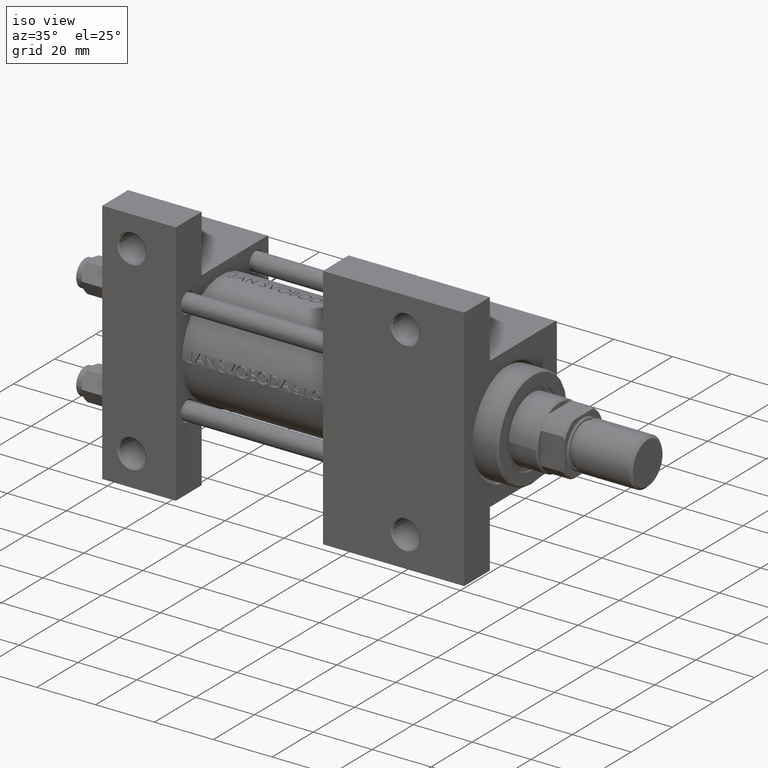
[diagram: clean part render]
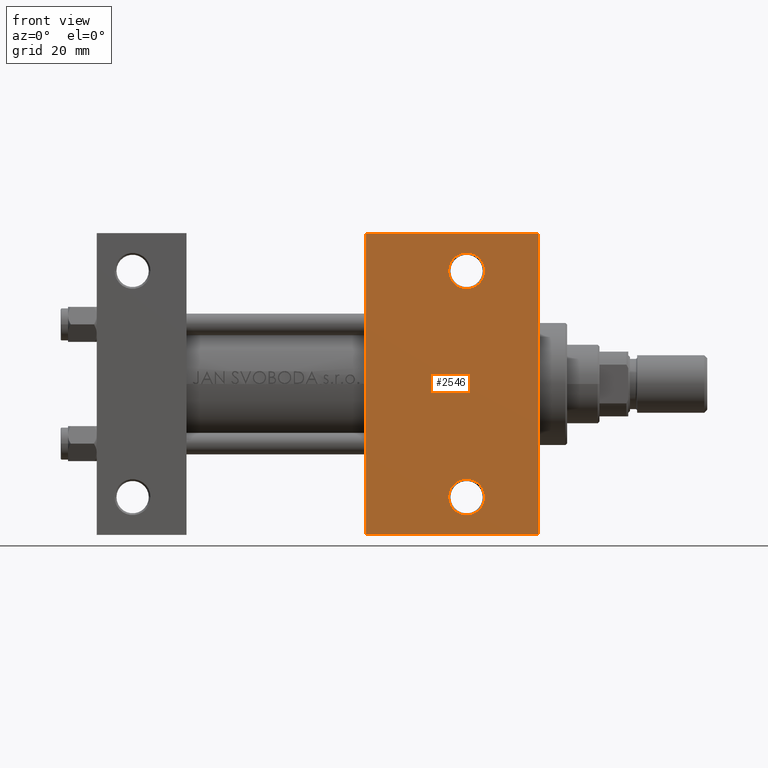
[diagram: tour spotlight — one face highlighted and labeled with its STEP entity id]
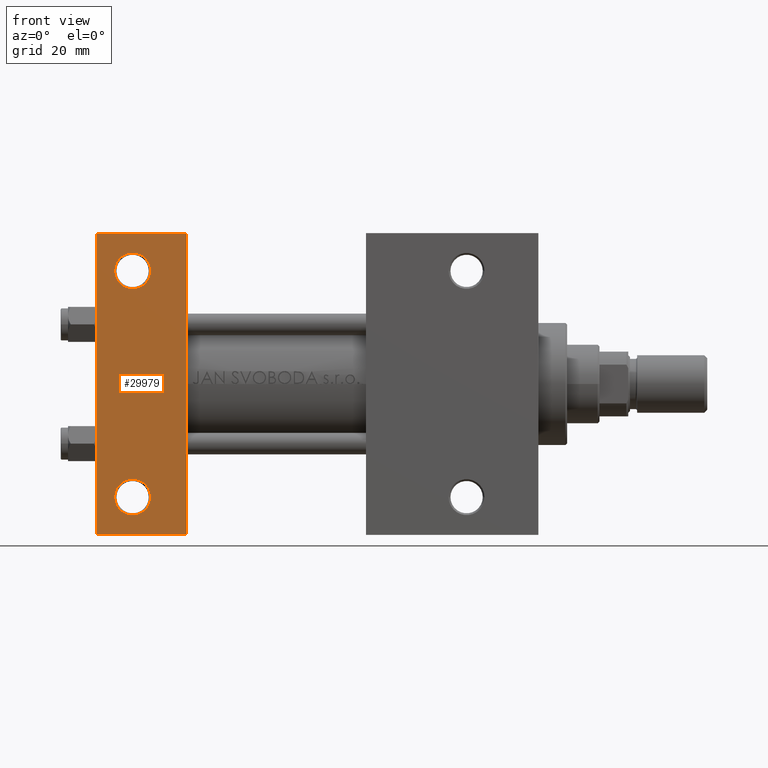
[diagram: tour spotlight — one face highlighted and labeled with its STEP entity id]
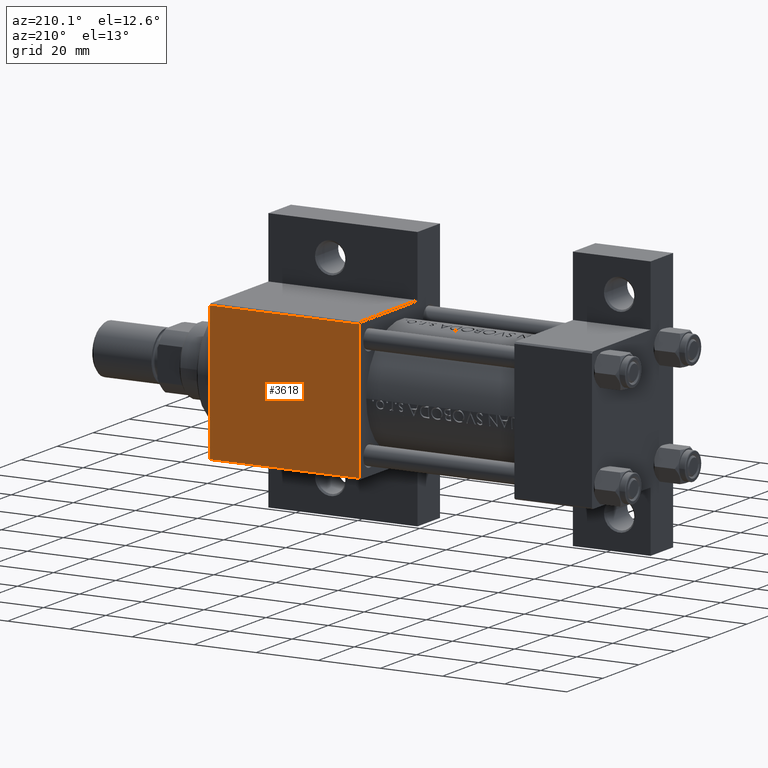
[diagram: tour spotlight — one face highlighted and labeled with its STEP entity id]
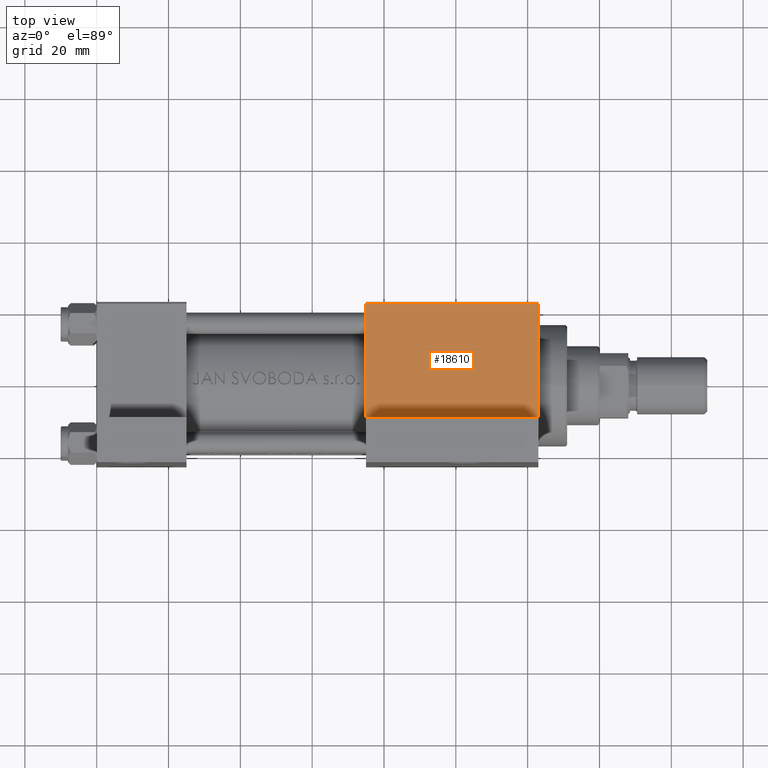
[diagram: tour spotlight — one face highlighted and labeled with its STEP entity id]
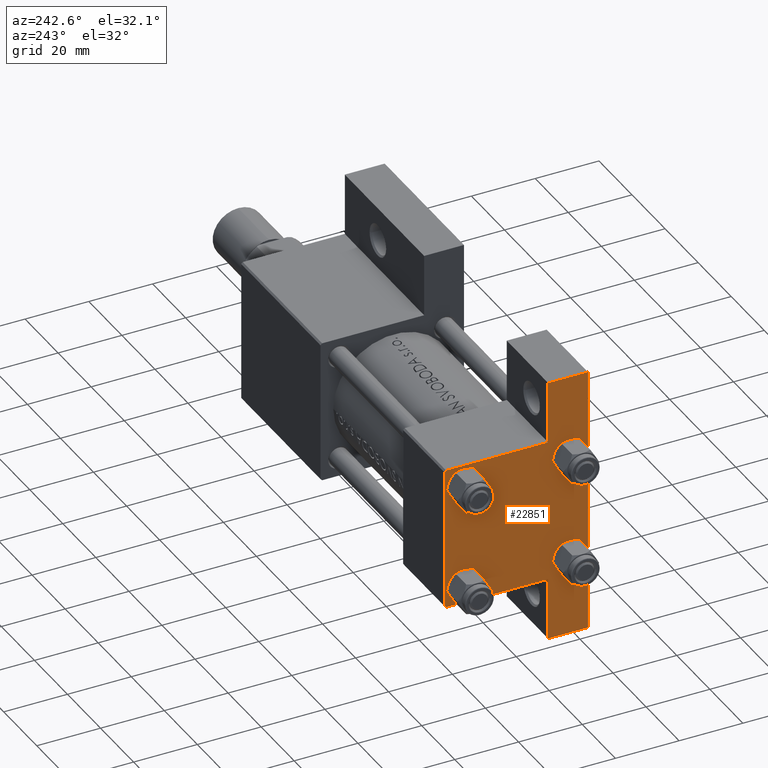
[diagram: tour spotlight — one face highlighted and labeled with its STEP entity id]
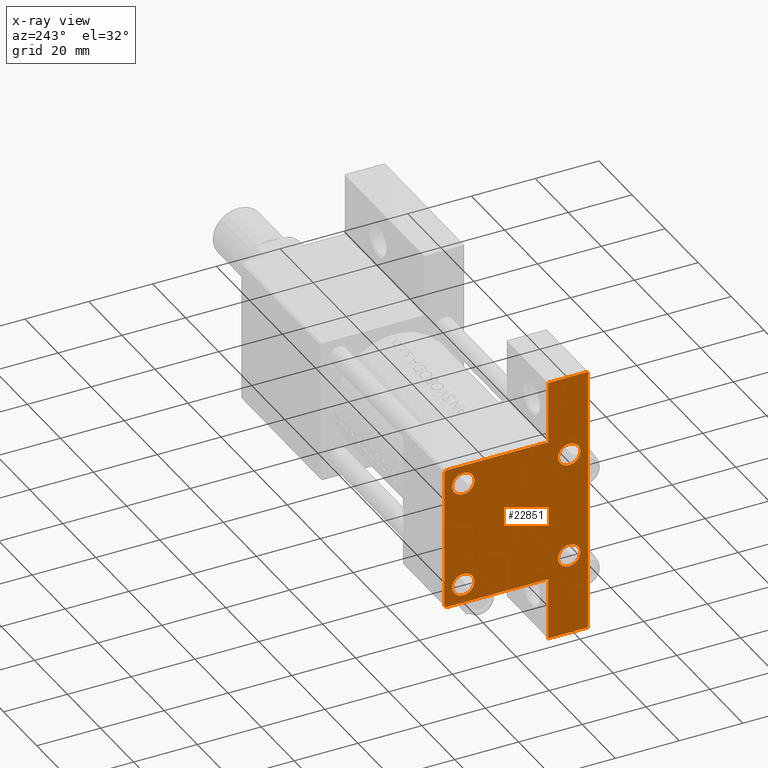
[diagram: x-ray of the same camera — body ghosted, this tour face saturated]
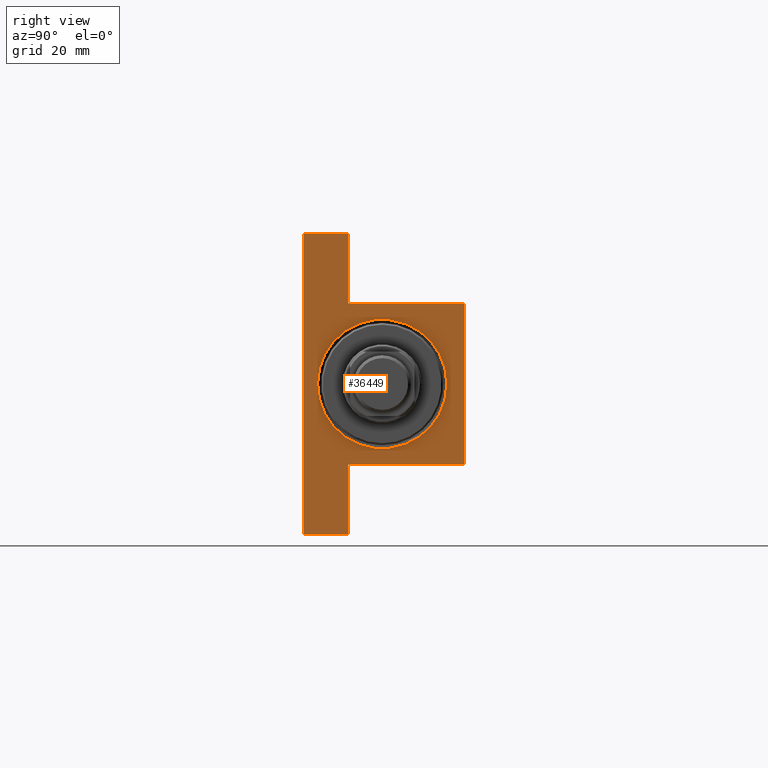
[diagram: tour spotlight — one face highlighted and labeled with its STEP entity id]
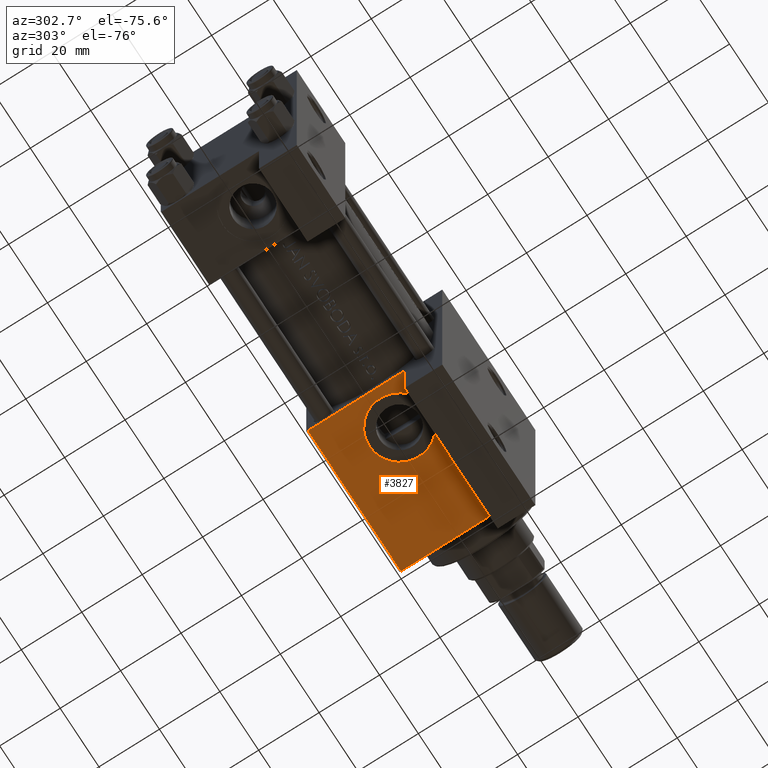
[diagram: tour spotlight — one face highlighted and labeled with its STEP entity id]
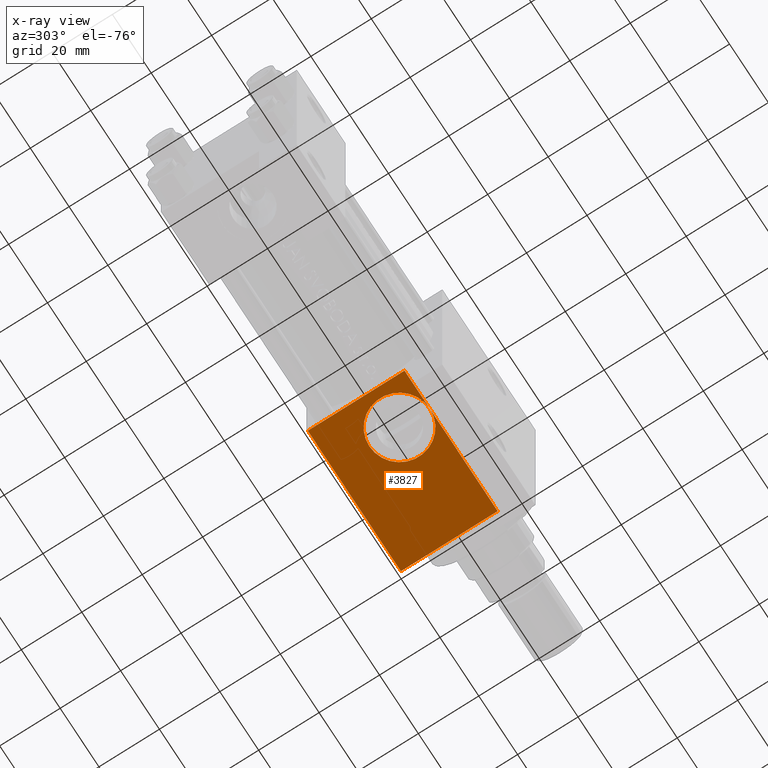
[diagram: x-ray of the same camera — body ghosted, this tour face saturated]
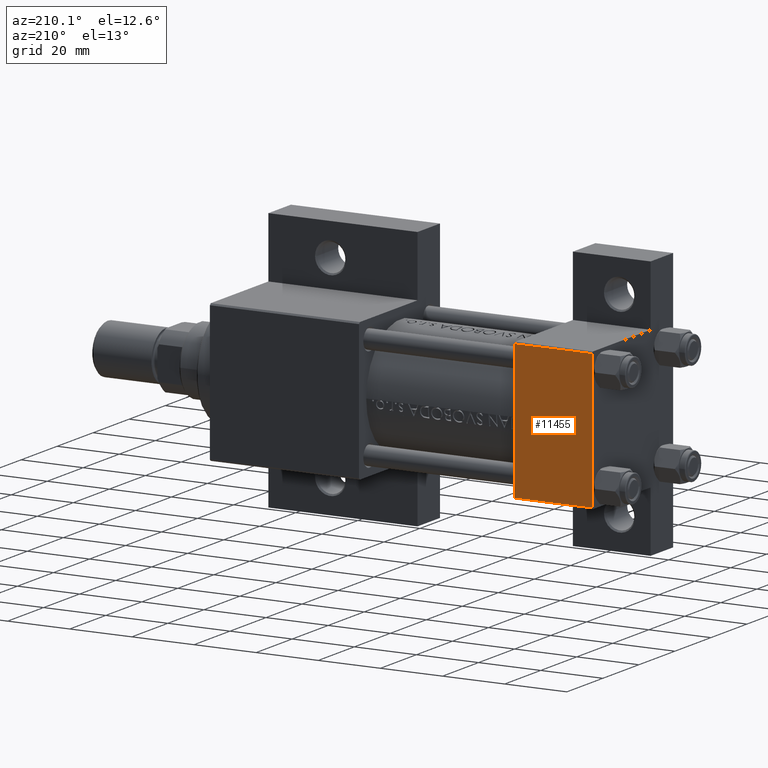
[diagram: tour spotlight — one face highlighted and labeled with its STEP entity id]
A machine part: a face-by-face anatomy tour. The part has 1100 B-rep faces; the first image is the clean iso view, then the 8 largest visible faces are spotlighted one at a time (largest first), each with its STEP entity span.

Face 1 — front view, entity #2546. In plain terms, the highlighted planar face has unit normal (0, -1, -0).
Definition (entity closure, byte-faithful):
#861 = VERTEX_POINT ( 'NONE', #31116 ) ;
#2069 = CARTESIAN_POINT ( 'NONE',  ( 103.0000000000000142, -31.50000000000000000, -22.50000000000000000 ) ) ;
#2098 = EDGE_CURVE ( 'NONE', #861, #38284, #32050, .T. ) ;
#2223 = ORIENTED_EDGE ( 'NONE', *, *, #44172, .T. ) ;
#2546 = ADVANCED_FACE ( 'NONE', ( #7649, #41388, #15411 ), #19044, .T. ) ;
#2716 = EDGE_LOOP ( 'NONE', ( #2223, #28482 ) ) ;
#2948 = ORIENTED_EDGE ( 'NONE', *, *, #35202, .T. ) ;
#3434 = CARTESIAN_POINT ( 'NONE',  ( 103.0000000000000142, -31.50000000000000000, -22.50000000000000000 ) ) ;
#4080 = CARTESIAN_POINT ( 'NONE',  ( 98.00050000000004502, 31.50000000000000000, -22.49999999999999645 ) ) ;
#4097 = VERTEX_POINT ( 'NONE', #13996 ) ;
#4485 = CARTESIAN_POINT ( 'NONE',  ( 123.0000000000000142, 22.50000000000000355, -22.49999999999999645 ) ) ;
#5096 = ORIENTED_EDGE ( 'NONE', *, *, #43220, .T. ) ;
#5218 = CARTESIAN_POINT ( 'NONE',  ( 123.0000000000000142, 22.50000000000000355, -22.49999999999999645 ) ) ;
#5542 = AXIS2_PLACEMENT_3D ( 'NONE', #2069, #39221, #12512 ) ;
#7031 = CARTESIAN_POINT ( 'NONE',  ( 103.0000000000000142, 31.50000000000000000, -22.49999999999999645 ) ) ;
#7219 = EDGE_LOOP ( 'NONE', ( #7555, #38362 ) ) ;
#7555 = ORIENTED_EDGE ( 'NONE', *, *, #30807, .T. ) ;
#7649 = FACE_BOUND ( 'NONE', #7219, .T. ) ;
#7699 = DIRECTION ( 'NONE',  ( 0.000000000000000000, 1.000000000000000000, 0.000000000000000000 ) ) ;
#9581 = CARTESIAN_POINT ( 'NONE',  ( 75.00000000000000000, -42.00000000000000711, -22.50000000000000000 ) ) ;
#10612 = EDGE_CURVE ( 'NONE', #26724, #34845, #24805, .T. ) ;
#11366 = VERTEX_POINT ( 'NONE', #27808 ) ;
#11492 = VECTOR ( 'NONE', #37897, 1000.000000000000000 ) ;
#12512 = DIRECTION ( 'NONE',  ( 0.000000000000000000, 1.000000000000000000, 0.000000000000000000 ) ) ;
#13694 = CIRCLE ( 'NONE', #40828, 4.999499999999962085 ) ;
#13996 = CARTESIAN_POINT ( 'NONE',  ( 75.00000000000001421, 42.00000000000000711, -22.50000000000000000 ) ) ;
#14981 = VECTOR ( 'NONE', #27773, 1000.000000000000000 ) ;
#15411 = FACE_OUTER_BOUND ( 'NONE', #40813, .T. ) ;
#15630 = CARTESIAN_POINT ( 'NONE',  ( 98.00050000000005923, -31.50000000000000000, -22.50000000000000000 ) ) ;
#17623 = ORIENTED_EDGE ( 'NONE', *, *, #41420, .F. ) ;
#18083 = CIRCLE ( 'NONE', #42142, 4.999499999999948763 ) ;
#18227 = ORIENTED_EDGE ( 'NONE', *, *, #38176, .T. ) ;
#18239 = DIRECTION ( 'NONE',  ( -0.000000000000000000, -7.709882115452476934E-17, 1.000000000000000000 ) ) ;
#18844 = AXIS2_PLACEMENT_3D ( 'NONE', #4485, #40670, #34080 ) ;
#18851 = CARTESIAN_POINT ( 'NONE',  ( 103.0000000000000142, 31.50000000000000000, -22.49999999999999645 ) ) ;
#19044 = PLANE ( 'NONE',  #18844 ) ;
#20673 = LINE ( 'NONE', #47327, #22595 ) ;
#22377 = CARTESIAN_POINT ( 'NONE',  ( 75.00000000000000000, -42.00000000000000711, -22.50000000000000000 ) ) ;
#22595 = VECTOR ( 'NONE', #36610, 1000.000000000000000 ) ;
#23519 = AXIS2_PLACEMENT_3D ( 'NONE', #7031, #43459, #47582 ) ;
#24616 = CARTESIAN_POINT ( 'NONE',  ( 123.0000000000000000, 41.99999999999999289, -22.50000000000000000 ) ) ;
#24707 = LINE ( 'NONE', #47299, #33539 ) ;
#24805 = CIRCLE ( 'NONE', #5542, 4.999499999999948763 ) ;
#26724 = VERTEX_POINT ( 'NONE', #33617 ) ;
#27773 = DIRECTION ( 'NONE',  ( 0.000000000000000000, -1.000000000000000000, -7.709882115452476934E-17 ) ) ;
#27808 = CARTESIAN_POINT ( 'NONE',  ( 122.9999999999999858, -42.00000000000000711, -22.50000000000000000 ) ) ;
#28482 = ORIENTED_EDGE ( 'NONE', *, *, #10612, .T. ) ;
#29541 = DIRECTION ( 'NONE',  ( -0.000000000000000000, -7.709882115452476934E-17, 1.000000000000000000 ) ) ;
#30807 = EDGE_CURVE ( 'NONE', #38284, #861, #13694, .T. ) ;
#31116 = CARTESIAN_POINT ( 'NONE',  ( 107.9994999999999692, 31.50000000000000000, -22.49999999999999645 ) ) ;
#32050 = CIRCLE ( 'NONE', #23519, 4.999499999999962085 ) ;
#33049 = DIRECTION ( 'NONE',  ( 0.000000000000000000, 1.000000000000000000, 0.000000000000000000 ) ) ;
#33539 = VECTOR ( 'NONE', #46819, 1000.000000000000000 ) ;
#33617 = CARTESIAN_POINT ( 'NONE',  ( 107.9994999999999550, -31.50000000000000000, -22.50000000000000000 ) ) ;
#34080 = DIRECTION ( 'NONE',  ( 0.000000000000000000, 1.000000000000000000, 7.709882115452476934E-17 ) ) ;
#34845 = VERTEX_POINT ( 'NONE', #15630 ) ;
#35202 = EDGE_CURVE ( 'NONE', #11366, #40269, #44724, .T. ) ;
#36610 = DIRECTION ( 'NONE',  ( 1.000000000000000000, -2.891205793294679312E-16, 0.000000000000000000 ) ) ;
#37897 = DIRECTION ( 'NONE',  ( -1.000000000000000000, -0.000000000000000000, -0.000000000000000000 ) ) ;
#38176 = EDGE_CURVE ( 'NONE', #4097, #43331, #20673, .T. ) ;
#38284 = VERTEX_POINT ( 'NONE', #4080 ) ;
#38362 = ORIENTED_EDGE ( 'NONE', *, *, #2098, .T. ) ;
#38935 = LINE ( 'NONE', #5218, #14981 ) ;
#39221 = DIRECTION ( 'NONE',  ( -0.000000000000000000, -7.709882115452476934E-17, 1.000000000000000000 ) ) ;
#40269 = VERTEX_POINT ( 'NONE', #9581 ) ;
#40670 = DIRECTION ( 'NONE',  ( 0.000000000000000000, 7.709882115452476934E-17, -1.000000000000000000 ) ) ;
#40813 = EDGE_LOOP ( 'NONE', ( #17623, #18227, #5096, #2948 ) ) ;
#40828 = AXIS2_PLACEMENT_3D ( 'NONE', #18851, #29541, #7699 ) ;
#41388 = FACE_BOUND ( 'NONE', #2716, .T. ) ;
#41420 = EDGE_CURVE ( 'NONE', #4097, #40269, #24707, .T. ) ;
#42142 = AXIS2_PLACEMENT_3D ( 'NONE', #3434, #18239, #33049 ) ;
#43220 = EDGE_CURVE ( 'NONE', #43331, #11366, #38935, .T. ) ;
#43331 = VERTEX_POINT ( 'NONE', #24616 ) ;
#43459 = DIRECTION ( 'NONE',  ( -0.000000000000000000, -7.709882115452476934E-17, 1.000000000000000000 ) ) ;
#44172 = EDGE_CURVE ( 'NONE', #34845, #26724, #18083, .T. ) ;
#44724 = LINE ( 'NONE', #22377, #11492 ) ;
#46819 = DIRECTION ( 'NONE',  ( 0.000000000000000000, -1.000000000000000000, -7.709882115452476934E-17 ) ) ;
#47299 = CARTESIAN_POINT ( 'NONE',  ( 75.00000000000001421, 22.50000000000000355, -22.49999999999999645 ) ) ;
#47327 = CARTESIAN_POINT ( 'NONE',  ( 75.00000000000001421, 42.00000000000000711, -22.50000000000000000 ) ) ;
#47582 = DIRECTION ( 'NONE',  ( 0.000000000000000000, 1.000000000000000000, 0.000000000000000000 ) ) ;

Face 2 — front view, entity #29979. In plain terms, the highlighted planar face has unit normal (0, -1, -0).
Definition (entity closure, byte-faithful):
#51 = CARTESIAN_POINT ( 'NONE',  ( 25.00000000000000000, 22.50000000000000000, -22.49999999999999645 ) ) ;
#299 = VECTOR ( 'NONE', #39067, 1000.000000000000000 ) ;
#433 = CARTESIAN_POINT ( 'NONE',  ( 14.99950000000002071, -31.50000000000001421, -22.50000000000001066 ) ) ;
#477 = DIRECTION ( 'NONE',  ( 0.000000000000000000, 1.000000000000000000, 0.000000000000000000 ) ) ;
#569 = CIRCLE ( 'NONE', #47103, 4.999500000000018041 ) ;
#1930 = CARTESIAN_POINT ( 'NONE',  ( 14.99950000000001715, 31.49999999999998579, -22.49999999999999289 ) ) ;
#3457 = EDGE_LOOP ( 'NONE', ( #31769, #36264 ) ) ;
#3884 = CARTESIAN_POINT ( 'NONE',  ( 1.025107321934354758E-14, 42.00000000000000711, -22.50000000000000711 ) ) ;
#5068 = EDGE_CURVE ( 'NONE', #47442, #36636, #21090, .T. ) ;
#5742 = VERTEX_POINT ( 'NONE', #43980 ) ;
#5893 = DIRECTION ( 'NONE',  ( -0.000000000000000000, -2.312964634635742957E-16, 1.000000000000000000 ) ) ;
#6063 = CARTESIAN_POINT ( 'NONE',  ( -3.595989349422702816E-17, -41.99999999999999289, -22.49999999999999289 ) ) ;
#7058 = LINE ( 'NONE', #3884, #37132 ) ;
#7060 = DIRECTION ( 'NONE',  ( -0.000000000000000000, -2.312964634635742957E-16, 1.000000000000000000 ) ) ;
#7126 = PLANE ( 'NONE',  #28411 ) ;
#7305 = CARTESIAN_POINT ( 'NONE',  ( 25.00000000000000000, 22.50000000000000000, -22.49999999999999645 ) ) ;
#7372 = FACE_BOUND ( 'NONE', #3457, .T. ) ;
#8136 = CARTESIAN_POINT ( 'NONE',  ( 5.000499999999979295, -31.50000000000001421, -22.50000000000001066 ) ) ;
#8934 = EDGE_CURVE ( 'NONE', #38242, #42338, #29488, .T. ) ;
#9621 = EDGE_CURVE ( 'NONE', #29881, #33317, #31833, .T. ) ;
#10192 = VECTOR ( 'NONE', #18025, 1000.000000000000000 ) ;
#10924 = DIRECTION ( 'NONE',  ( 1.000000000000000000, 2.775557561562891351E-16, 0.000000000000000000 ) ) ;
#11475 = FACE_BOUND ( 'NONE', #25986, .T. ) ;
#11705 = DIRECTION ( 'NONE',  ( 0.000000000000000000, 1.000000000000000000, 2.312964634635742957E-16 ) ) ;
#11825 = CARTESIAN_POINT ( 'NONE',  ( -3.595989349422702816E-17, -41.99999999999999289, -22.49999999999999289 ) ) ;
#14088 = CARTESIAN_POINT ( 'NONE',  ( 25.00000000000000000, -42.00000000000000000, -22.49999999999999289 ) ) ;
#15530 = LINE ( 'NONE', #18274, #10192 ) ;
#16365 = CARTESIAN_POINT ( 'NONE',  ( 25.00000000000001066, 42.00000000000001421, -22.50000000000000711 ) ) ;
#17280 = CARTESIAN_POINT ( 'NONE',  ( 10.00000000000000000, -31.50000000000001421, -22.50000000000001066 ) ) ;
#18025 = DIRECTION ( 'NONE',  ( 0.000000000000000000, -1.000000000000000000, -2.312964634635742957E-16 ) ) ;
#18274 = CARTESIAN_POINT ( 'NONE',  ( 0.000000000000000000, 22.50000000000000000, -22.49999999999999645 ) ) ;
#20675 = DIRECTION ( 'NONE',  ( 0.000000000000000000, 1.000000000000000000, 0.000000000000000000 ) ) ;
#21090 = LINE ( 'NONE', #6063, #299 ) ;
#21207 = CIRCLE ( 'NONE', #46020, 4.999500000000018041 ) ;
#21937 = DIRECTION ( 'NONE',  ( 0.000000000000000000, 1.000000000000000000, 0.000000000000000000 ) ) ;
#22345 = LINE ( 'NONE', #7305, #45024 ) ;
#22685 = EDGE_LOOP ( 'NONE', ( #30071, #39276, #45448, #24190 ) ) ;
#24190 = ORIENTED_EDGE ( 'NONE', *, *, #5068, .T. ) ;
#25813 = DIRECTION ( 'NONE',  ( -0.000000000000000000, -2.312964634635742957E-16, 1.000000000000000000 ) ) ;
#25986 = EDGE_LOOP ( 'NONE', ( #28127, #43086 ) ) ;
#26274 = DIRECTION ( 'NONE',  ( 0.000000000000000000, 2.312964634635742957E-16, -1.000000000000000000 ) ) ;
#28127 = ORIENTED_EDGE ( 'NONE', *, *, #44387, .T. ) ;
#28411 = AXIS2_PLACEMENT_3D ( 'NONE', #51, #26274, #11705 ) ;
#29488 = CIRCLE ( 'NONE', #33364, 4.999500000000018041 ) ;
#29881 = VERTEX_POINT ( 'NONE', #47203 ) ;
#29979 = ADVANCED_FACE ( 'NONE', ( #7372, #11475, #36973 ), #7126, .T. ) ;
#30071 = ORIENTED_EDGE ( 'NONE', *, *, #38860, .F. ) ;
#31769 = ORIENTED_EDGE ( 'NONE', *, *, #9621, .T. ) ;
#31833 = CIRCLE ( 'NONE', #34952, 4.999500000000018041 ) ;
#32577 = EDGE_CURVE ( 'NONE', #33317, #29881, #569, .T. ) ;
#32955 = VERTEX_POINT ( 'NONE', #16365 ) ;
#33317 = VERTEX_POINT ( 'NONE', #1930 ) ;
#33364 = AXIS2_PLACEMENT_3D ( 'NONE', #17280, #5893, #20675 ) ;
#33495 = CARTESIAN_POINT ( 'NONE',  ( 10.00000000000000000, 31.49999999999998579, -22.49999999999999289 ) ) ;
#34952 = AXIS2_PLACEMENT_3D ( 'NONE', #36505, #25813, #21937 ) ;
#36135 = EDGE_CURVE ( 'NONE', #5742, #32955, #7058, .T. ) ;
#36264 = ORIENTED_EDGE ( 'NONE', *, *, #32577, .T. ) ;
#36505 = CARTESIAN_POINT ( 'NONE',  ( 10.00000000000000000, 31.49999999999998579, -22.49999999999999289 ) ) ;
#36636 = VERTEX_POINT ( 'NONE', #11825 ) ;
#36973 = FACE_OUTER_BOUND ( 'NONE', #22685, .T. ) ;
#37116 = EDGE_CURVE ( 'NONE', #32955, #47442, #22345, .T. ) ;
#37132 = VECTOR ( 'NONE', #10924, 1000.000000000000000 ) ;
#37864 = DIRECTION ( 'NONE',  ( 0.000000000000000000, -1.000000000000000000, -2.312964634635742957E-16 ) ) ;
#38242 = VERTEX_POINT ( 'NONE', #433 ) ;
#38860 = EDGE_CURVE ( 'NONE', #5742, #36636, #15530, .T. ) ;
#39067 = DIRECTION ( 'NONE',  ( -1.000000000000000000, 2.775557561562891351E-16, -0.000000000000000000 ) ) ;
#39276 = ORIENTED_EDGE ( 'NONE', *, *, #36135, .T. ) ;
#39739 = DIRECTION ( 'NONE',  ( 0.000000000000000000, 1.000000000000000000, 0.000000000000000000 ) ) ;
#40222 = DIRECTION ( 'NONE',  ( -0.000000000000000000, -2.312964634635742957E-16, 1.000000000000000000 ) ) ;
#42338 = VERTEX_POINT ( 'NONE', #8136 ) ;
#43086 = ORIENTED_EDGE ( 'NONE', *, *, #8934, .T. ) ;
#43980 = CARTESIAN_POINT ( 'NONE',  ( 1.025107321934354758E-14, 42.00000000000000711, -22.50000000000000711 ) ) ;
#44387 = EDGE_CURVE ( 'NONE', #42338, #38242, #21207, .T. ) ;
#45024 = VECTOR ( 'NONE', #37864, 1000.000000000000000 ) ;
#45448 = ORIENTED_EDGE ( 'NONE', *, *, #37116, .T. ) ;
#46020 = AXIS2_PLACEMENT_3D ( 'NONE', #47279, #40222, #39739 ) ;
#47103 = AXIS2_PLACEMENT_3D ( 'NONE', #33495, #7060, #477 ) ;
#47203 = CARTESIAN_POINT ( 'NONE',  ( 5.000499999999981959, 31.49999999999998579, -22.49999999999999289 ) ) ;
#47279 = CARTESIAN_POINT ( 'NONE',  ( 10.00000000000000000, -31.50000000000001421, -22.50000000000001066 ) ) ;
#47442 = VERTEX_POINT ( 'NONE', #14088 ) ;

Face 3 — auxiliary view, entity #3618. In plain terms, the highlighted planar face has unit normal (0, -1, -0).
Definition (entity closure, byte-faithful):
#101 = CARTESIAN_POINT ( 'NONE',  ( 75.00000000000001421, 21.99999999999998934, 22.50000000000000355 ) ) ;
#638 = CARTESIAN_POINT ( 'NONE',  ( 75.00000000000001421, 22.50000000000000355, 22.50000000000000355 ) ) ;
#976 = VERTEX_POINT ( 'NONE', #15031 ) ;
#2997 = PLANE ( 'NONE',  #12677 ) ;
#3618 = ADVANCED_FACE ( 'NONE', ( #28492 ), #2997, .F. ) ;
#5483 = ORIENTED_EDGE ( 'NONE', *, *, #32015, .T. ) ;
#7872 = CARTESIAN_POINT ( 'NONE',  ( 123.0000000000000142, 22.50000000000000355, 22.50000000000000355 ) ) ;
#11507 = LINE ( 'NONE', #7872, #33976 ) ;
#12179 = VECTOR ( 'NONE', #14936, 1000.000000000000000 ) ;
#12677 = AXIS2_PLACEMENT_3D ( 'NONE', #46702, #35771, #13446 ) ;
#13446 = DIRECTION ( 'NONE',  ( 0.000000000000000000, 1.000000000000000000, 2.312964634635742957E-16 ) ) ;
#14936 = DIRECTION ( 'NONE',  ( -1.000000000000000000, 0.000000000000000000, 0.000000000000000000 ) ) ;
#15031 = CARTESIAN_POINT ( 'NONE',  ( 123.0000000000000142, 21.99999999999998934, 22.50000000000000355 ) ) ;
#15367 = EDGE_CURVE ( 'NONE', #47293, #25644, #30958, .T. ) ;
#16102 = DIRECTION ( 'NONE',  ( 0.000000000000000000, -1.000000000000000000, -2.312964634635742957E-16 ) ) ;
#19149 = EDGE_LOOP ( 'NONE', ( #26423, #5483, #41469, #26333 ) ) ;
#19503 = LINE ( 'NONE', #101, #12179 ) ;
#20899 = DIRECTION ( 'NONE',  ( 1.000000000000000000, 0.000000000000000000, 0.000000000000000000 ) ) ;
#21429 = CARTESIAN_POINT ( 'NONE',  ( 75.00000000000001421, -21.99999999999996803, 22.49999999999999289 ) ) ;
#25644 = VERTEX_POINT ( 'NONE', #21429 ) ;
#26333 = ORIENTED_EDGE ( 'NONE', *, *, #30111, .T. ) ;
#26423 = ORIENTED_EDGE ( 'NONE', *, *, #34811, .F. ) ;
#28193 = LINE ( 'NONE', #43492, #31511 ) ;
#28492 = FACE_OUTER_BOUND ( 'NONE', #19149, .T. ) ;
#28831 = VECTOR ( 'NONE', #30253, 1000.000000000000000 ) ;
#30111 = EDGE_CURVE ( 'NONE', #25644, #32222, #28193, .T. ) ;
#30253 = DIRECTION ( 'NONE',  ( 0.000000000000000000, -1.000000000000000000, -2.312964634635742957E-16 ) ) ;
#30958 = LINE ( 'NONE', #638, #28831 ) ;
#31511 = VECTOR ( 'NONE', #20899, 1000.000000000000000 ) ;
#32015 = EDGE_CURVE ( 'NONE', #976, #47293, #19503, .T. ) ;
#32222 = VERTEX_POINT ( 'NONE', #40134 ) ;
#33976 = VECTOR ( 'NONE', #16102, 1000.000000000000000 ) ;
#34811 = EDGE_CURVE ( 'NONE', #976, #32222, #11507, .T. ) ;
#35771 = DIRECTION ( 'NONE',  ( 0.000000000000000000, 2.312964634635742957E-16, -1.000000000000000000 ) ) ;
#40134 = CARTESIAN_POINT ( 'NONE',  ( 123.0000000000000142, -21.99999999999996803, 22.49999999999999289 ) ) ;
#41070 = CARTESIAN_POINT ( 'NONE',  ( 75.00000000000001421, 21.99999999999998934, 22.50000000000000355 ) ) ;
#41469 = ORIENTED_EDGE ( 'NONE', *, *, #15367, .T. ) ;
#43492 = CARTESIAN_POINT ( 'NONE',  ( 123.0000000000000142, -21.99999999999998224, 22.49999999999999289 ) ) ;
#46702 = CARTESIAN_POINT ( 'NONE',  ( 123.0000000000000142, 22.50000000000000355, 22.50000000000000355 ) ) ;
#47293 = VERTEX_POINT ( 'NONE', #41070 ) ;

Face 4 — top view, entity #18610. In plain terms, the highlighted planar face has unit normal (0, 0, -1).
Definition (entity closure, byte-faithful):
#2033 = EDGE_CURVE ( 'NONE', #25079, #34180, #46135, .T. ) ;
#3194 = FACE_OUTER_BOUND ( 'NONE', #15549, .T. ) ;
#7090 = DIRECTION ( 'NONE',  ( -0.000000000000000000, 1.000000000000000000, 0.000000000000000000 ) ) ;
#10248 = PLANE ( 'NONE',  #25045 ) ;
#12366 = VERTEX_POINT ( 'NONE', #43199 ) ;
#14423 = VECTOR ( 'NONE', #41268, 1000.000000000000000 ) ;
#15549 = EDGE_LOOP ( 'NONE', ( #46843, #31661, #33071, #37788 ) ) ;
#16191 = EDGE_CURVE ( 'NONE', #40562, #12366, #17503, .T. ) ;
#17503 = LINE ( 'NONE', #28900, #24975 ) ;
#18082 = VECTOR ( 'NONE', #27904, 1000.000000000000000 ) ;
#18610 = ADVANCED_FACE ( 'NONE', ( #3194 ), #10248, .F. ) ;
#23793 = CARTESIAN_POINT ( 'NONE',  ( 75.00000000000001421, -22.50000000000000000, -9.999999999999998224 ) ) ;
#24772 = DIRECTION ( 'NONE',  ( -1.000000000000000000, 0.000000000000000000, 0.000000000000000000 ) ) ;
#24975 = VECTOR ( 'NONE', #24772, 1000.000000000000000 ) ;
#25045 = AXIS2_PLACEMENT_3D ( 'NONE', #28699, #7090, #28216 ) ;
#25079 = VERTEX_POINT ( 'NONE', #38310 ) ;
#26033 = EDGE_CURVE ( 'NONE', #12366, #25079, #29610, .T. ) ;
#26435 = CARTESIAN_POINT ( 'NONE',  ( 123.0000000000000142, -22.49999999999999645, 22.49999999999999289 ) ) ;
#27904 = DIRECTION ( 'NONE',  ( 1.000000000000000000, -1.445602896647340149E-16, 0.000000000000000000 ) ) ;
#28216 = DIRECTION ( 'NONE',  ( 0.000000000000000000, -0.000000000000000000, 1.000000000000000000 ) ) ;
#28301 = EDGE_CURVE ( 'NONE', #40562, #34180, #41026, .T. ) ;
#28465 = CARTESIAN_POINT ( 'NONE',  ( 123.0000000000000142, -22.49999999999999645, -9.999999999999980460 ) ) ;
#28699 = CARTESIAN_POINT ( 'NONE',  ( 123.0000000000000142, -22.49999999999999645, 22.49999999999999289 ) ) ;
#28900 = CARTESIAN_POINT ( 'NONE',  ( 123.0000000000000142, -22.49999999999999645, 21.99999999999997868 ) ) ;
#29610 = LINE ( 'NONE', #37133, #35228 ) ;
#31661 = ORIENTED_EDGE ( 'NONE', *, *, #16191, .T. ) ;
#33071 = ORIENTED_EDGE ( 'NONE', *, *, #26033, .T. ) ;
#34180 = VERTEX_POINT ( 'NONE', #28465 ) ;
#35228 = VECTOR ( 'NONE', #40544, 1000.000000000000000 ) ;
#37133 = CARTESIAN_POINT ( 'NONE',  ( 75.00000000000001421, -22.49999999999999645, 22.49999999999999289 ) ) ;
#37788 = ORIENTED_EDGE ( 'NONE', *, *, #2033, .T. ) ;
#38310 = CARTESIAN_POINT ( 'NONE',  ( 75.00000000000001421, -22.50000000000000000, -9.999999999999998224 ) ) ;
#40544 = DIRECTION ( 'NONE',  ( 0.000000000000000000, 0.000000000000000000, -1.000000000000000000 ) ) ;
#40562 = VERTEX_POINT ( 'NONE', #45476 ) ;
#41026 = LINE ( 'NONE', #26435, #14423 ) ;
#41268 = DIRECTION ( 'NONE',  ( 0.000000000000000000, 0.000000000000000000, -1.000000000000000000 ) ) ;
#43199 = CARTESIAN_POINT ( 'NONE',  ( 75.00000000000001421, -22.49999999999999645, 21.99999999999997868 ) ) ;
#45476 = CARTESIAN_POINT ( 'NONE',  ( 123.0000000000000142, -22.49999999999999645, 21.99999999999997868 ) ) ;
#46135 = LINE ( 'NONE', #23793, #18082 ) ;
#46843 = ORIENTED_EDGE ( 'NONE', *, *, #28301, .F. ) ;

Face 5 — auxiliary view, entity #22851. An x-ray twin of the same camera follows (body ghosted, this face saturated) — the face is partly hidden behind the body. In plain terms, the highlighted planar face has unit normal (-1, 0, -0).
Definition (entity closure, byte-faithful):
#261 = VECTOR ( 'NONE', #8346, 1000.000000000000000 ) ;
#594 = LINE ( 'NONE', #38205, #4297 ) ;
#762 = ORIENTED_EDGE ( 'NONE', *, *, #18878, .T. ) ;
#805 = CARTESIAN_POINT ( 'NONE',  ( -3.595989349422702816E-17, -41.99999999999998579, 21.70567772497540560 ) ) ;
#1080 = DIRECTION ( 'NONE',  ( 1.000000000000000000, -0.000000000000000000, 0.000000000000000000 ) ) ;
#1301 = DIRECTION ( 'NONE',  ( -2.463698175388230807E-16, -1.000000000000000000, 0.000000000000000000 ) ) ;
#2290 = DIRECTION ( 'NONE',  ( 0.000000000000000000, -1.734723475976806848E-16, -1.000000000000000000 ) ) ;
#2555 = AXIS2_PLACEMENT_3D ( 'NONE', #47281, #27845, #5524 ) ;
#2950 = VERTEX_POINT ( 'NONE', #35401 ) ;
#3103 = CARTESIAN_POINT ( 'NONE',  ( 1.025107321934354758E-14, 42.00000000000000711, -9.999999999999994671 ) ) ;
#3108 = CARTESIAN_POINT ( 'NONE',  ( 0.000000000000000000, 16.59999999999999787, 16.60000000000000497 ) ) ;
#4297 = VECTOR ( 'NONE', #26325, 1000.000000000000000 ) ;
#4644 = CARTESIAN_POINT ( 'NONE',  ( 0.000000000000000000, -16.59999999999999076, -13.10000000000001030 ) ) ;
#4754 = VECTOR ( 'NONE', #1301, 1000.000000000000000 ) ;
#5134 = DIRECTION ( 'NONE',  ( 1.000000000000000000, -0.000000000000000000, 0.000000000000000000 ) ) ;
#5524 = DIRECTION ( 'NONE',  ( 0.000000000000000000, 0.000000000000000000, 1.000000000000000000 ) ) ;
#5738 = ORIENTED_EDGE ( 'NONE', *, *, #41966, .T. ) ;
#5742 = VERTEX_POINT ( 'NONE', #43980 ) ;
#6805 = CARTESIAN_POINT ( 'NONE',  ( -0.000000000000000000, -22.24999999999984013, 22.25000000000015277 ) ) ;
#7161 = DIRECTION ( 'NONE',  ( 1.000000000000000000, -0.000000000000000000, 0.000000000000000000 ) ) ;
#7173 = CARTESIAN_POINT ( 'NONE',  ( 0.000000000000000000, -16.59999999999999076, -16.60000000000000853 ) ) ;
#7353 = AXIS2_PLACEMENT_3D ( 'NONE', #32530, #29854, #47599 ) ;
#7461 = EDGE_CURVE ( 'NONE', #44644, #18030, #26832, .T. ) ;
#8346 = DIRECTION ( 'NONE',  ( 0.000000000000000000, 0.000000000000000000, -1.000000000000000000 ) ) ;
#8466 = EDGE_CURVE ( 'NONE', #24615, #29347, #30279, .T. ) ;
#8579 = DIRECTION ( 'NONE',  ( 1.000000000000000000, -0.000000000000000000, 0.000000000000000000 ) ) ;
#8780 = ORIENTED_EDGE ( 'NONE', *, *, #46989, .T. ) ;
#9000 = CIRCLE ( 'NONE', #35367, 3.499999999999996003 ) ;
#9924 = DIRECTION ( 'NONE',  ( 0.000000000000000000, 0.000000000000000000, 1.000000000000000000 ) ) ;
#10192 = VECTOR ( 'NONE', #18025, 1000.000000000000000 ) ;
#10678 = EDGE_CURVE ( 'NONE', #38785, #22368, #17605, .T. ) ;
#10863 = ORIENTED_EDGE ( 'NONE', *, *, #10678, .F. ) ;
#10937 = EDGE_LOOP ( 'NONE', ( #44390, #44305 ) ) ;
#11042 = DIRECTION ( 'NONE',  ( 1.000000000000000000, -0.000000000000000000, 0.000000000000000000 ) ) ;
#11825 = CARTESIAN_POINT ( 'NONE',  ( -3.595989349422702816E-17, -41.99999999999999289, -22.49999999999999289 ) ) ;
#11974 = CARTESIAN_POINT ( 'NONE',  ( 0.000000000000000000, 22.50000000000000000, 22.50000000000000355 ) ) ;
#12673 = VECTOR ( 'NONE', #47344, 999.9999999999998863 ) ;
#13228 = CARTESIAN_POINT ( 'NONE',  ( 0.000000000000000000, 21.99999999999999289, 22.50000000000000355 ) ) ;
#14050 = CARTESIAN_POINT ( 'NONE',  ( 0.000000000000000000, 16.59999999999999787, -13.10000000000000675 ) ) ;
#14112 = VERTEX_POINT ( 'NONE', #36633 ) ;
#14195 = LINE ( 'NONE', #21466, #27386 ) ;
#14302 = EDGE_CURVE ( 'NONE', #44644, #31547, #16704, .T. ) ;
#14752 = ORIENTED_EDGE ( 'NONE', *, *, #18345, .T. ) ;
#15078 = CARTESIAN_POINT ( 'NONE',  ( 0.000000000000000000, 16.59999999999999787, 20.10000000000000142 ) ) ;
#15439 = CARTESIAN_POINT ( 'NONE',  ( 0.000000000000000000, 16.59999999999999787, -16.60000000000000497 ) ) ;
#15530 = LINE ( 'NONE', #18274, #10192 ) ;
#16632 = CIRCLE ( 'NONE', #43778, 3.499999999999996003 ) ;
#16704 = LINE ( 'NONE', #31732, #38828 ) ;
#17197 = DIRECTION ( 'NONE',  ( 1.000000000000000000, -0.000000000000000000, 0.000000000000000000 ) ) ;
#17483 = LINE ( 'NONE', #6805, #12673 ) ;
#17605 = LINE ( 'NONE', #47953, #40410 ) ;
#17911 = DIRECTION ( 'NONE',  ( 0.000000000000000000, 0.000000000000000000, 1.000000000000000000 ) ) ;
#18025 = DIRECTION ( 'NONE',  ( 0.000000000000000000, -1.000000000000000000, -2.312964634635742957E-16 ) ) ;
#18030 = VERTEX_POINT ( 'NONE', #35672 ) ;
#18274 = CARTESIAN_POINT ( 'NONE',  ( 0.000000000000000000, 22.50000000000000000, -22.49999999999999645 ) ) ;
#18286 = CIRCLE ( 'NONE', #23722, 3.499999999999996003 ) ;
#18315 = DIRECTION ( 'NONE',  ( 1.440457709352326947E-18, -1.000000000000000000, 0.000000000000000000 ) ) ;
#18345 = EDGE_CURVE ( 'NONE', #35258, #37178, #25798, .T. ) ;
#18483 = CIRCLE ( 'NONE', #19244, 3.499999999999996003 ) ;
#18672 = PLANE ( 'NONE',  #7353 ) ;
#18732 = VERTEX_POINT ( 'NONE', #22133 ) ;
#18878 = EDGE_CURVE ( 'NONE', #18732, #18030, #17483, .T. ) ;
#18947 = CIRCLE ( 'NONE', #46081, 3.499999999999996003 ) ;
#19083 = VERTEX_POINT ( 'NONE', #30072 ) ;
#19244 = AXIS2_PLACEMENT_3D ( 'NONE', #31319, #5134, #28167 ) ;
#19269 = ORIENTED_EDGE ( 'NONE', *, *, #38860, .T. ) ;
#19330 = CARTESIAN_POINT ( 'NONE',  ( 0.000000000000000000, 22.50000000000000000, 21.99999999999999645 ) ) ;
#19635 = CARTESIAN_POINT ( 'NONE',  ( -6.404881882659739909E-17, -22.49999999999999645, -9.999999999999994671 ) ) ;
#19797 = EDGE_CURVE ( 'NONE', #23783, #5742, #14195, .T. ) ;
#19977 = CARTESIAN_POINT ( 'NONE',  ( 0.000000000000000000, -16.59999999999999076, 16.60000000000000853 ) ) ;
#20217 = CARTESIAN_POINT ( 'NONE',  ( 1.025107321934354758E-14, 42.00000000000001421, -9.999999999999994671 ) ) ;
#20254 = DIRECTION ( 'NONE',  ( 0.000000000000000000, -1.000000000000000000, -7.709882115452476934E-17 ) ) ;
#20256 = ORIENTED_EDGE ( 'NONE', *, *, #28910, .T. ) ;
#21466 = CARTESIAN_POINT ( 'NONE',  ( 1.025107321934354758E-14, 42.00000000000001421, 21.70567772497539138 ) ) ;
#21603 = FACE_BOUND ( 'NONE', #22215, .T. ) ;
#22133 = CARTESIAN_POINT ( 'NONE',  ( 0.000000000000000000, -22.50000000000000000, 22.00000000000000000 ) ) ;
#22148 = EDGE_CURVE ( 'NONE', #22368, #36636, #45963, .T. ) ;
#22215 = EDGE_LOOP ( 'NONE', ( #14752, #20256 ) ) ;
#22325 = FACE_OUTER_BOUND ( 'NONE', #32782, .T. ) ;
#22368 = VERTEX_POINT ( 'NONE', #28709 ) ;
#22851 = ADVANCED_FACE ( 'NONE', ( #40790, #21603, #33245, #32763, #22325 ), #18672, .T. ) ;
#23631 = DIRECTION ( 'NONE',  ( 0.000000000000000000, 0.000000000000000000, 1.000000000000000000 ) ) ;
#23722 = AXIS2_PLACEMENT_3D ( 'NONE', #7173, #11042, #40679 ) ;
#23783 = VERTEX_POINT ( 'NONE', #3103 ) ;
#24093 = VERTEX_POINT ( 'NONE', #31209 ) ;
#24279 = EDGE_CURVE ( 'NONE', #18732, #38785, #594, .T. ) ;
#24615 = VERTEX_POINT ( 'NONE', #27877 ) ;
#25226 = EDGE_CURVE ( 'NONE', #14112, #30202, #18947, .T. ) ;
#25301 = EDGE_LOOP ( 'NONE', ( #46116, #32727 ) ) ;
#25353 = EDGE_CURVE ( 'NONE', #24093, #19083, #16632, .T. ) ;
#25661 = CARTESIAN_POINT ( 'NONE',  ( 0.000000000000000000, -16.59999999999999076, 16.60000000000000853 ) ) ;
#25798 = CIRCLE ( 'NONE', #2555, 3.499999999999996003 ) ;
#26065 = VECTOR ( 'NONE', #20254, 1000.000000000000000 ) ;
#26325 = DIRECTION ( 'NONE',  ( 0.000000000000000000, 0.000000000000000000, -1.000000000000000000 ) ) ;
#26780 = LINE ( 'NONE', #11974, #261 ) ;
#26832 = LINE ( 'NONE', #38714, #26065 ) ;
#27386 = VECTOR ( 'NONE', #2290, 1000.000000000000000 ) ;
#27845 = DIRECTION ( 'NONE',  ( 1.000000000000000000, -0.000000000000000000, 0.000000000000000000 ) ) ;
#27877 = CARTESIAN_POINT ( 'NONE',  ( 0.000000000000000000, 16.59999999999999787, -20.10000000000000142 ) ) ;
#28167 = DIRECTION ( 'NONE',  ( 0.000000000000000000, 0.000000000000000000, 1.000000000000000000 ) ) ;
#28593 = ORIENTED_EDGE ( 'NONE', *, *, #25353, .T. ) ;
#28709 = CARTESIAN_POINT ( 'NONE',  ( -3.595989349422702816E-17, -41.99999999999999289, -9.999999999999994671 ) ) ;
#28735 = AXIS2_PLACEMENT_3D ( 'NONE', #15439, #1080, #30223 ) ;
#28910 = EDGE_CURVE ( 'NONE', #37178, #35258, #18286, .T. ) ;
#29347 = VERTEX_POINT ( 'NONE', #14050 ) ;
#29373 = EDGE_CURVE ( 'NONE', #30202, #14112, #9000, .T. ) ;
#29854 = DIRECTION ( 'NONE',  ( -1.000000000000000000, 0.000000000000000000, -0.000000000000000000 ) ) ;
#30072 = CARTESIAN_POINT ( 'NONE',  ( 0.000000000000000000, -16.59999999999999076, 13.10000000000001030 ) ) ;
#30202 = VERTEX_POINT ( 'NONE', #15078 ) ;
#30223 = DIRECTION ( 'NONE',  ( 0.000000000000000000, 0.000000000000000000, 1.000000000000000000 ) ) ;
#30279 = CIRCLE ( 'NONE', #28735, 3.499999999999996003 ) ;
#31209 = CARTESIAN_POINT ( 'NONE',  ( 0.000000000000000000, -16.59999999999999076, 20.10000000000000853 ) ) ;
#31319 = CARTESIAN_POINT ( 'NONE',  ( 0.000000000000000000, 16.59999999999999787, -16.60000000000000497 ) ) ;
#31547 = VERTEX_POINT ( 'NONE', #19330 ) ;
#31732 = CARTESIAN_POINT ( 'NONE',  ( 0.000000000000000000, 22.24999999999999645, 22.24999999999999645 ) ) ;
#31977 = AXIS2_PLACEMENT_3D ( 'NONE', #25661, #17197, #9924 ) ;
#32530 = CARTESIAN_POINT ( 'NONE',  ( 0.000000000000000000, 0.000000000000000000, 0.000000000000000000 ) ) ;
#32727 = ORIENTED_EDGE ( 'NONE', *, *, #25226, .T. ) ;
#32763 = FACE_BOUND ( 'NONE', #25301, .T. ) ;
#32782 = EDGE_LOOP ( 'NONE', ( #40814, #762, #44116, #43359, #8780, #34100, #34649, #19269, #42372, #10863 ) ) ;
#33245 = FACE_BOUND ( 'NONE', #10937, .T. ) ;
#33754 = CARTESIAN_POINT ( 'NONE',  ( 0.000000000000000000, -16.59999999999999076, -20.10000000000000497 ) ) ;
#33850 = CARTESIAN_POINT ( 'NONE',  ( 0.000000000000000000, 16.59999999999999787, 16.60000000000000497 ) ) ;
#34100 = ORIENTED_EDGE ( 'NONE', *, *, #38514, .F. ) ;
#34649 = ORIENTED_EDGE ( 'NONE', *, *, #19797, .T. ) ;
#35258 = VERTEX_POINT ( 'NONE', #4644 ) ;
#35343 = EDGE_CURVE ( 'NONE', #29347, #24615, #18483, .T. ) ;
#35367 = AXIS2_PLACEMENT_3D ( 'NONE', #3108, #43671, #17911 ) ;
#35401 = CARTESIAN_POINT ( 'NONE',  ( 0.000000000000000000, 22.50000000000000000, -9.999999999999984013 ) ) ;
#35524 = LINE ( 'NONE', #20217, #4754 ) ;
#35672 = CARTESIAN_POINT ( 'NONE',  ( 0.000000000000000000, -21.99999999999997868, 22.50000000000000000 ) ) ;
#35872 = DIRECTION ( 'NONE',  ( 0.000000000000000000, 0.7071067811865474617, -0.7071067811865474617 ) ) ;
#36633 = CARTESIAN_POINT ( 'NONE',  ( 0.000000000000000000, 16.59999999999999787, 13.10000000000000675 ) ) ;
#36636 = VERTEX_POINT ( 'NONE', #11825 ) ;
#37178 = VERTEX_POINT ( 'NONE', #33754 ) ;
#38205 = CARTESIAN_POINT ( 'NONE',  ( 0.000000000000000000, -22.50000000000000000, 22.50000000000000000 ) ) ;
#38514 = EDGE_CURVE ( 'NONE', #23783, #2950, #35524, .T. ) ;
#38714 = CARTESIAN_POINT ( 'NONE',  ( 0.000000000000000000, 22.50000000000000000, 22.50000000000000355 ) ) ;
#38785 = VERTEX_POINT ( 'NONE', #19635 ) ;
#38828 = VECTOR ( 'NONE', #35872, 1000.000000000000114 ) ;
#38860 = EDGE_CURVE ( 'NONE', #5742, #36636, #15530, .T. ) ;
#39119 = VECTOR ( 'NONE', #41846, 1000.000000000000000 ) ;
#40410 = VECTOR ( 'NONE', #18315, 1000.000000000000000 ) ;
#40517 = CIRCLE ( 'NONE', #31977, 3.499999999999996003 ) ;
#40679 = DIRECTION ( 'NONE',  ( 0.000000000000000000, 0.000000000000000000, 1.000000000000000000 ) ) ;
#40790 = FACE_BOUND ( 'NONE', #43415, .T. ) ;
#40814 = ORIENTED_EDGE ( 'NONE', *, *, #24279, .F. ) ;
#41846 = DIRECTION ( 'NONE',  ( 0.000000000000000000, -1.734723475976806848E-16, -1.000000000000000000 ) ) ;
#41966 = EDGE_CURVE ( 'NONE', #19083, #24093, #40517, .T. ) ;
#42372 = ORIENTED_EDGE ( 'NONE', *, *, #22148, .F. ) ;
#43359 = ORIENTED_EDGE ( 'NONE', *, *, #14302, .T. ) ;
#43415 = EDGE_LOOP ( 'NONE', ( #28593, #5738 ) ) ;
#43671 = DIRECTION ( 'NONE',  ( 1.000000000000000000, -0.000000000000000000, 0.000000000000000000 ) ) ;
#43778 = AXIS2_PLACEMENT_3D ( 'NONE', #19977, #8579, #23631 ) ;
#43980 = CARTESIAN_POINT ( 'NONE',  ( 1.025107321934354758E-14, 42.00000000000000711, -22.50000000000000711 ) ) ;
#44116 = ORIENTED_EDGE ( 'NONE', *, *, #7461, .F. ) ;
#44305 = ORIENTED_EDGE ( 'NONE', *, *, #8466, .T. ) ;
#44390 = ORIENTED_EDGE ( 'NONE', *, *, #35343, .T. ) ;
#44644 = VERTEX_POINT ( 'NONE', #13228 ) ;
#44790 = DIRECTION ( 'NONE',  ( 0.000000000000000000, 0.000000000000000000, 1.000000000000000000 ) ) ;
#45963 = LINE ( 'NONE', #805, #39119 ) ;
#46081 = AXIS2_PLACEMENT_3D ( 'NONE', #33850, #7161, #44790 ) ;
#46116 = ORIENTED_EDGE ( 'NONE', *, *, #29373, .T. ) ;
#46989 = EDGE_CURVE ( 'NONE', #31547, #2950, #26780, .T. ) ;
#47281 = CARTESIAN_POINT ( 'NONE',  ( 0.000000000000000000, -16.59999999999999076, -16.60000000000000853 ) ) ;
#47344 = DIRECTION ( 'NONE',  ( -0.000000000000000000, 0.7071067811865525687, 0.7071067811865425767 ) ) ;
#47599 = DIRECTION ( 'NONE',  ( -0.000000000000000000, 0.000000000000000000, 1.000000000000000000 ) ) ;
#47953 = CARTESIAN_POINT ( 'NONE',  ( -3.595989349422703432E-17, -41.99999999999998579, -9.999999999999994671 ) ) ;

Face 6 — right view, entity #36449. In plain terms, the highlighted planar face has unit normal (-1, 0, -0).
Definition (entity closure, byte-faithful):
#105 = LINE ( 'NONE', #23169, #38383 ) ;
#107 = ORIENTED_EDGE ( 'NONE', *, *, #32296, .F. ) ;
#396 = CARTESIAN_POINT ( 'NONE',  ( 123.0000000000000142, 21.99999999999998934, 22.50000000000000355 ) ) ;
#535 = VECTOR ( 'NONE', #6706, 1000.000000000000000 ) ;
#976 = VERTEX_POINT ( 'NONE', #15031 ) ;
#992 = EDGE_CURVE ( 'NONE', #24048, #6755, #30776, .T. ) ;
#3086 = EDGE_CURVE ( 'NONE', #38054, #46642, #34361, .T. ) ;
#3600 = VECTOR ( 'NONE', #37302, 1000.000000000000114 ) ;
#5218 = CARTESIAN_POINT ( 'NONE',  ( 123.0000000000000142, 22.50000000000000355, -22.49999999999999645 ) ) ;
#5271 = CARTESIAN_POINT ( 'NONE',  ( 123.0000000000000142, 0.000000000000000000, -0.4999999999999967804 ) ) ;
#5747 = CARTESIAN_POINT ( 'NONE',  ( 123.0000000000000000, 41.99999999999999289, -9.999999999999998224 ) ) ;
#6703 = EDGE_LOOP ( 'NONE', ( #8947, #24929, #39762, #9959, #21727, #40311, #42937, #21720, #107, #7071 ) ) ;
#6706 = DIRECTION ( 'NONE',  ( 0.000000000000000000, 0.000000000000000000, -1.000000000000000000 ) ) ;
#6755 = VERTEX_POINT ( 'NONE', #11196 ) ;
#6773 = DIRECTION ( 'NONE',  ( -0.000000000000000000, -1.000000000000000000, -0.000000000000000000 ) ) ;
#7071 = ORIENTED_EDGE ( 'NONE', *, *, #992, .T. ) ;
#7467 = LINE ( 'NONE', #396, #3600 ) ;
#7872 = CARTESIAN_POINT ( 'NONE',  ( 123.0000000000000142, 22.50000000000000355, 22.50000000000000355 ) ) ;
#8219 = DIRECTION ( 'NONE',  ( -7.116814260417667527E-16, -1.000000000000000000, 0.000000000000000000 ) ) ;
#8729 = VECTOR ( 'NONE', #6773, 1000.000000000000000 ) ;
#8753 = EDGE_CURVE ( 'NONE', #32222, #40562, #14194, .T. ) ;
#8947 = ORIENTED_EDGE ( 'NONE', *, *, #31715, .F. ) ;
#9146 = DIRECTION ( 'NONE',  ( -1.000000000000000000, 0.000000000000000000, -0.000000000000000000 ) ) ;
#9959 = ORIENTED_EDGE ( 'NONE', *, *, #8753, .T. ) ;
#10387 = ORIENTED_EDGE ( 'NONE', *, *, #3086, .T. ) ;
#10801 = LINE ( 'NONE', #21722, #535 ) ;
#10865 = LINE ( 'NONE', #14529, #8729 ) ;
#11004 = CARTESIAN_POINT ( 'NONE',  ( 123.0000000000000142, 0.000000000000000000, -18.50000000000000000 ) ) ;
#11196 = CARTESIAN_POINT ( 'NONE',  ( 122.9999999999999858, 22.49999999999999289, -9.999999999999998224 ) ) ;
#11366 = VERTEX_POINT ( 'NONE', #27808 ) ;
#11507 = LINE ( 'NONE', #7872, #33976 ) ;
#14051 = CARTESIAN_POINT ( 'NONE',  ( 123.0000000000000142, 0.000000000000000000, 0.000000000000000000 ) ) ;
#14150 = VECTOR ( 'NONE', #8219, 1000.000000000000000 ) ;
#14194 = LINE ( 'NONE', #17816, #24068 ) ;
#14423 = VECTOR ( 'NONE', #41268, 1000.000000000000000 ) ;
#14529 = CARTESIAN_POINT ( 'NONE',  ( 122.9999999999999858, -42.00000000000000711, -9.999999999999998224 ) ) ;
#14641 = LINE ( 'NONE', #25778, #30760 ) ;
#14981 = VECTOR ( 'NONE', #27773, 1000.000000000000000 ) ;
#15031 = CARTESIAN_POINT ( 'NONE',  ( 123.0000000000000142, 21.99999999999998934, 22.50000000000000355 ) ) ;
#16102 = DIRECTION ( 'NONE',  ( 0.000000000000000000, -1.000000000000000000, -2.312964634635742957E-16 ) ) ;
#17452 = FACE_OUTER_BOUND ( 'NONE', #6703, .T. ) ;
#17816 = CARTESIAN_POINT ( 'NONE',  ( 123.0000000000000142, -22.49999999999999645, 21.99999999999997868 ) ) ;
#17904 = DIRECTION ( 'NONE',  ( 0.000000000000000000, 0.000000000000000000, 1.000000000000000000 ) ) ;
#18996 = DIRECTION ( 'NONE',  ( 0.000000000000000000, 0.000000000000000000, -1.000000000000000000 ) ) ;
#20412 = VERTEX_POINT ( 'NONE', #40042 ) ;
#20984 = CARTESIAN_POINT ( 'NONE',  ( 123.0000000000000142, 2.204364238465235822E-15, 17.50000000000000355 ) ) ;
#21720 = ORIENTED_EDGE ( 'NONE', *, *, #43220, .F. ) ;
#21722 = CARTESIAN_POINT ( 'NONE',  ( 123.0000000000000142, 22.50000000000000355, 22.50000000000000355 ) ) ;
#21727 = ORIENTED_EDGE ( 'NONE', *, *, #28301, .T. ) ;
#22734 = AXIS2_PLACEMENT_3D ( 'NONE', #40488, #28843, #17904 ) ;
#23169 = CARTESIAN_POINT ( 'NONE',  ( 122.9999999999999858, -42.00000000000000711, -9.999999999999998224 ) ) ;
#23940 = DIRECTION ( 'NONE',  ( 0.000000000000000000, 0.000000000000000000, 1.000000000000000000 ) ) ;
#24048 = VERTEX_POINT ( 'NONE', #5747 ) ;
#24068 = VECTOR ( 'NONE', #26048, 1000.000000000000114 ) ;
#24208 = EDGE_CURVE ( 'NONE', #36923, #11366, #105, .T. ) ;
#24616 = CARTESIAN_POINT ( 'NONE',  ( 123.0000000000000000, 41.99999999999999289, -22.50000000000000000 ) ) ;
#24929 = ORIENTED_EDGE ( 'NONE', *, *, #30860, .T. ) ;
#25603 = CARTESIAN_POINT ( 'NONE',  ( 122.9999999999999858, -42.00000000000000711, -9.999999999999998224 ) ) ;
#25778 = CARTESIAN_POINT ( 'NONE',  ( 123.0000000000000000, 41.99999999999999289, -9.999999999999998224 ) ) ;
#26048 = DIRECTION ( 'NONE',  ( -0.000000000000000000, -0.7071067811865474617, -0.7071067811865474617 ) ) ;
#26435 = CARTESIAN_POINT ( 'NONE',  ( 123.0000000000000142, -22.49999999999999645, 22.49999999999999289 ) ) ;
#27773 = DIRECTION ( 'NONE',  ( 0.000000000000000000, -1.000000000000000000, -7.709882115452476934E-17 ) ) ;
#27808 = CARTESIAN_POINT ( 'NONE',  ( 122.9999999999999858, -42.00000000000000711, -22.50000000000000000 ) ) ;
#28301 = EDGE_CURVE ( 'NONE', #40562, #34180, #41026, .T. ) ;
#28465 = CARTESIAN_POINT ( 'NONE',  ( 123.0000000000000142, -22.49999999999999645, -9.999999999999980460 ) ) ;
#28843 = DIRECTION ( 'NONE',  ( -1.000000000000000000, 0.000000000000000000, -0.000000000000000000 ) ) ;
#28849 = DIRECTION ( 'NONE',  ( -1.000000000000000000, 0.000000000000000000, -0.000000000000000000 ) ) ;
#29374 = AXIS2_PLACEMENT_3D ( 'NONE', #14051, #28849, #43672 ) ;
#30760 = VECTOR ( 'NONE', #18996, 1000.000000000000000 ) ;
#30776 = LINE ( 'NONE', #45112, #14150 ) ;
#30860 = EDGE_CURVE ( 'NONE', #20412, #976, #7467, .T. ) ;
#31715 = EDGE_CURVE ( 'NONE', #20412, #6755, #10801, .T. ) ;
#32222 = VERTEX_POINT ( 'NONE', #40134 ) ;
#32296 = EDGE_CURVE ( 'NONE', #24048, #43331, #14641, .T. ) ;
#33622 = DIRECTION ( 'NONE',  ( 0.000000000000000000, 0.000000000000000000, -1.000000000000000000 ) ) ;
#33976 = VECTOR ( 'NONE', #16102, 1000.000000000000000 ) ;
#34180 = VERTEX_POINT ( 'NONE', #28465 ) ;
#34361 = CIRCLE ( 'NONE', #22734, 18.00000000000000355 ) ;
#34811 = EDGE_CURVE ( 'NONE', #976, #32222, #11507, .T. ) ;
#35895 = FACE_BOUND ( 'NONE', #46366, .T. ) ;
#36449 = ADVANCED_FACE ( 'NONE', ( #35895, #17452 ), #47311, .F. ) ;
#36569 = EDGE_CURVE ( 'NONE', #46642, #38054, #40225, .T. ) ;
#36923 = VERTEX_POINT ( 'NONE', #25603 ) ;
#37302 = DIRECTION ( 'NONE',  ( 0.000000000000000000, -0.7071067811865474617, 0.7071067811865474617 ) ) ;
#38054 = VERTEX_POINT ( 'NONE', #11004 ) ;
#38383 = VECTOR ( 'NONE', #33622, 1000.000000000000000 ) ;
#38935 = LINE ( 'NONE', #5218, #14981 ) ;
#39762 = ORIENTED_EDGE ( 'NONE', *, *, #34811, .T. ) ;
#40042 = CARTESIAN_POINT ( 'NONE',  ( 123.0000000000000142, 22.50000000000000355, 21.99999999999998934 ) ) ;
#40134 = CARTESIAN_POINT ( 'NONE',  ( 123.0000000000000142, -21.99999999999996803, 22.49999999999999289 ) ) ;
#40225 = CIRCLE ( 'NONE', #46427, 18.00000000000000355 ) ;
#40311 = ORIENTED_EDGE ( 'NONE', *, *, #42010, .T. ) ;
#40488 = CARTESIAN_POINT ( 'NONE',  ( 123.0000000000000142, 0.000000000000000000, -0.4999999999999967804 ) ) ;
#40562 = VERTEX_POINT ( 'NONE', #45476 ) ;
#41026 = LINE ( 'NONE', #26435, #14423 ) ;
#41268 = DIRECTION ( 'NONE',  ( 0.000000000000000000, 0.000000000000000000, -1.000000000000000000 ) ) ;
#42010 = EDGE_CURVE ( 'NONE', #34180, #36923, #10865, .T. ) ;
#42937 = ORIENTED_EDGE ( 'NONE', *, *, #24208, .T. ) ;
#43220 = EDGE_CURVE ( 'NONE', #43331, #11366, #38935, .T. ) ;
#43331 = VERTEX_POINT ( 'NONE', #24616 ) ;
#43672 = DIRECTION ( 'NONE',  ( -0.000000000000000000, 0.000000000000000000, 1.000000000000000000 ) ) ;
#45112 = CARTESIAN_POINT ( 'NONE',  ( 123.0000000000000000, 41.99999999999999289, -9.999999999999998224 ) ) ;
#45173 = ORIENTED_EDGE ( 'NONE', *, *, #36569, .T. ) ;
#45476 = CARTESIAN_POINT ( 'NONE',  ( 123.0000000000000142, -22.49999999999999645, 21.99999999999997868 ) ) ;
#46366 = EDGE_LOOP ( 'NONE', ( #10387, #45173 ) ) ;
#46427 = AXIS2_PLACEMENT_3D ( 'NONE', #5271, #9146, #23940 ) ;
#46642 = VERTEX_POINT ( 'NONE', #20984 ) ;
#47311 = PLANE ( 'NONE',  #29374 ) ;

Face 7 — auxiliary view, entity #3827. An x-ray twin of the same camera follows (body ghosted, this face saturated) — the face is partly hidden behind the body. In plain terms, the highlighted planar face has unit normal (0, 0, -1).
Definition (entity closure, byte-faithful):
#297 = ORIENTED_EDGE ( 'NONE', *, *, #23603, .F. ) ;
#397 = CIRCLE ( 'NONE', #12046, 9.999999999999994671 ) ;
#535 = VECTOR ( 'NONE', #6706, 1000.000000000000000 ) ;
#1466 = VERTEX_POINT ( 'NONE', #27788 ) ;
#1574 = ORIENTED_EDGE ( 'NONE', *, *, #25484, .T. ) ;
#3209 = DIRECTION ( 'NONE',  ( 1.000000000000000000, 0.000000000000000000, 0.000000000000000000 ) ) ;
#3496 = DIRECTION ( 'NONE',  ( 0.000000000000000000, 0.000000000000000000, -1.000000000000000000 ) ) ;
#3827 = ADVANCED_FACE ( 'NONE', ( #19450 ), #5381, .T. ) ;
#4403 = CARTESIAN_POINT ( 'NONE',  ( 75.00000000000001421, 22.50000000000000000, -9.999999999999998224 ) ) ;
#4561 = ORIENTED_EDGE ( 'NONE', *, *, #9895, .T. ) ;
#4756 = CARTESIAN_POINT ( 'NONE',  ( 75.00000000000001421, 22.50000000000000355, -9.999999999999984013 ) ) ;
#5381 = PLANE ( 'NONE',  #42958 ) ;
#6272 = ORIENTED_EDGE ( 'NONE', *, *, #7329, .T. ) ;
#6369 = EDGE_CURVE ( 'NONE', #1466, #44620, #17407, .T. ) ;
#6706 = DIRECTION ( 'NONE',  ( 0.000000000000000000, 0.000000000000000000, -1.000000000000000000 ) ) ;
#6755 = VERTEX_POINT ( 'NONE', #11196 ) ;
#7329 = EDGE_CURVE ( 'NONE', #28742, #44620, #10836, .T. ) ;
#9895 = EDGE_CURVE ( 'NONE', #6755, #28742, #34003, .T. ) ;
#10801 = LINE ( 'NONE', #21722, #535 ) ;
#10836 = LINE ( 'NONE', #26117, #22994 ) ;
#11184 = VECTOR ( 'NONE', #3209, 1000.000000000000000 ) ;
#11196 = CARTESIAN_POINT ( 'NONE',  ( 122.9999999999999858, 22.49999999999999289, -9.999999999999998224 ) ) ;
#12046 = AXIS2_PLACEMENT_3D ( 'NONE', #41976, #19628, #34442 ) ;
#14429 = CARTESIAN_POINT ( 'NONE',  ( 88.00000000000001421, 22.50000000000000355, 0.000000000000000000 ) ) ;
#17407 = LINE ( 'NONE', #29234, #20502 ) ;
#19192 = DIRECTION ( 'NONE',  ( -1.000000000000000000, 1.445602896647340149E-16, -0.000000000000000000 ) ) ;
#19450 = FACE_OUTER_BOUND ( 'NONE', #30677, .T. ) ;
#19628 = DIRECTION ( 'NONE',  ( 0.000000000000000000, 1.000000000000000000, 0.000000000000000000 ) ) ;
#19935 = DIRECTION ( 'NONE',  ( -0.000000000000000000, 1.000000000000000000, 0.000000000000000000 ) ) ;
#20324 = CARTESIAN_POINT ( 'NONE',  ( 88.00000000000001421, 22.50000000000000355, 9.999999999999994671 ) ) ;
#20412 = VERTEX_POINT ( 'NONE', #40042 ) ;
#20455 = LINE ( 'NONE', #35274, #11184 ) ;
#20502 = VECTOR ( 'NONE', #3496, 1000.000000000000000 ) ;
#21722 = CARTESIAN_POINT ( 'NONE',  ( 123.0000000000000142, 22.50000000000000355, 22.50000000000000355 ) ) ;
#22994 = VECTOR ( 'NONE', #37537, 1000.000000000000000 ) ;
#23603 = EDGE_CURVE ( 'NONE', #30693, #28742, #397, .T. ) ;
#25137 = CARTESIAN_POINT ( 'NONE',  ( 88.00000000000001421, 22.49999999999999645, -9.999999999999998224 ) ) ;
#25484 = EDGE_CURVE ( 'NONE', #1466, #20412, #20455, .T. ) ;
#25800 = DIRECTION ( 'NONE',  ( 0.000000000000000000, 0.000000000000000000, 1.000000000000000000 ) ) ;
#26117 = CARTESIAN_POINT ( 'NONE',  ( 75.00000000000001421, 22.50000000000000000, -9.999999999999998224 ) ) ;
#26977 = CARTESIAN_POINT ( 'NONE',  ( 123.0000000000000142, 22.50000000000000355, 22.50000000000000355 ) ) ;
#27788 = CARTESIAN_POINT ( 'NONE',  ( 75.00000000000001421, 22.50000000000000355, 21.99999999999998934 ) ) ;
#28742 = VERTEX_POINT ( 'NONE', #25137 ) ;
#29228 = DIRECTION ( 'NONE',  ( 0.000000000000000000, 1.000000000000000000, 0.000000000000000000 ) ) ;
#29234 = CARTESIAN_POINT ( 'NONE',  ( 75.00000000000001421, 22.50000000000000355, 22.50000000000000355 ) ) ;
#30677 = EDGE_LOOP ( 'NONE', ( #34609, #1574, #41856, #4561, #297, #35766, #6272 ) ) ;
#30693 = VERTEX_POINT ( 'NONE', #20324 ) ;
#31715 = EDGE_CURVE ( 'NONE', #20412, #6755, #10801, .T. ) ;
#34003 = LINE ( 'NONE', #4403, #41934 ) ;
#34190 = AXIS2_PLACEMENT_3D ( 'NONE', #14429, #29228, #25800 ) ;
#34442 = DIRECTION ( 'NONE',  ( 0.000000000000000000, 0.000000000000000000, 1.000000000000000000 ) ) ;
#34609 = ORIENTED_EDGE ( 'NONE', *, *, #6369, .F. ) ;
#35274 = CARTESIAN_POINT ( 'NONE',  ( 123.0000000000000142, 22.50000000000000355, 21.99999999999998934 ) ) ;
#35766 = ORIENTED_EDGE ( 'NONE', *, *, #38076, .F. ) ;
#37537 = DIRECTION ( 'NONE',  ( -1.000000000000000000, 1.445602896647340149E-16, -0.000000000000000000 ) ) ;
#38076 = EDGE_CURVE ( 'NONE', #28742, #30693, #39647, .T. ) ;
#39647 = CIRCLE ( 'NONE', #34190, 9.999999999999994671 ) ;
#40042 = CARTESIAN_POINT ( 'NONE',  ( 123.0000000000000142, 22.50000000000000355, 21.99999999999998934 ) ) ;
#41856 = ORIENTED_EDGE ( 'NONE', *, *, #31715, .T. ) ;
#41934 = VECTOR ( 'NONE', #19192, 1000.000000000000000 ) ;
#41976 = CARTESIAN_POINT ( 'NONE',  ( 88.00000000000001421, 22.50000000000000355, 0.000000000000000000 ) ) ;
#42958 = AXIS2_PLACEMENT_3D ( 'NONE', #26977, #19935, #45457 ) ;
#44620 = VERTEX_POINT ( 'NONE', #4756 ) ;
#45457 = DIRECTION ( 'NONE',  ( 0.000000000000000000, -0.000000000000000000, 1.000000000000000000 ) ) ;

Face 8 — auxiliary view, entity #11455. In plain terms, the highlighted planar face has unit normal (0, -1, -0).
Definition (entity closure, byte-faithful):
#668 = EDGE_CURVE ( 'NONE', #34497, #44644, #24129, .T. ) ;
#3116 = AXIS2_PLACEMENT_3D ( 'NONE', #10089, #25130, #10797 ) ;
#3521 = PLANE ( 'NONE',  #3116 ) ;
#4505 = LINE ( 'NONE', #22462, #33580 ) ;
#5107 = ORIENTED_EDGE ( 'NONE', *, *, #43181, .T. ) ;
#5780 = ORIENTED_EDGE ( 'NONE', *, *, #668, .T. ) ;
#7323 = CARTESIAN_POINT ( 'NONE',  ( 25.00000000000000000, 22.50000000000000000, 22.50000000000000355 ) ) ;
#7461 = EDGE_CURVE ( 'NONE', #44644, #18030, #26832, .T. ) ;
#8791 = VERTEX_POINT ( 'NONE', #29230 ) ;
#10089 = CARTESIAN_POINT ( 'NONE',  ( 25.00000000000000000, 22.50000000000000000, 22.50000000000000355 ) ) ;
#10797 = DIRECTION ( 'NONE',  ( 0.000000000000000000, 1.000000000000000000, 7.709882115452476934E-17 ) ) ;
#11455 = ADVANCED_FACE ( 'NONE', ( #33133 ), #3521, .F. ) ;
#12612 = ORIENTED_EDGE ( 'NONE', *, *, #7461, .T. ) ;
#13228 = CARTESIAN_POINT ( 'NONE',  ( 0.000000000000000000, 21.99999999999999289, 22.50000000000000355 ) ) ;
#18030 = VERTEX_POINT ( 'NONE', #35672 ) ;
#20137 = EDGE_CURVE ( 'NONE', #34497, #8791, #40329, .T. ) ;
#20254 = DIRECTION ( 'NONE',  ( 0.000000000000000000, -1.000000000000000000, -7.709882115452476934E-17 ) ) ;
#22462 = CARTESIAN_POINT ( 'NONE',  ( 25.00000000000000000, -21.99999999999999289, 22.50000000000000000 ) ) ;
#24129 = LINE ( 'NONE', #38946, #25762 ) ;
#25130 = DIRECTION ( 'NONE',  ( 0.000000000000000000, 7.709882115452476934E-17, -1.000000000000000000 ) ) ;
#25762 = VECTOR ( 'NONE', #35313, 1000.000000000000000 ) ;
#26065 = VECTOR ( 'NONE', #20254, 1000.000000000000000 ) ;
#26813 = DIRECTION ( 'NONE',  ( 1.000000000000000000, 0.000000000000000000, 0.000000000000000000 ) ) ;
#26832 = LINE ( 'NONE', #38714, #26065 ) ;
#29230 = CARTESIAN_POINT ( 'NONE',  ( 25.00000000000000000, -21.99999999999997868, 22.50000000000000000 ) ) ;
#33133 = FACE_OUTER_BOUND ( 'NONE', #47255, .T. ) ;
#33516 = DIRECTION ( 'NONE',  ( 0.000000000000000000, -1.000000000000000000, -7.709882115452476934E-17 ) ) ;
#33580 = VECTOR ( 'NONE', #26813, 1000.000000000000000 ) ;
#34497 = VERTEX_POINT ( 'NONE', #48006 ) ;
#35313 = DIRECTION ( 'NONE',  ( -1.000000000000000000, 0.000000000000000000, 0.000000000000000000 ) ) ;
#35672 = CARTESIAN_POINT ( 'NONE',  ( 0.000000000000000000, -21.99999999999997868, 22.50000000000000000 ) ) ;
#38714 = CARTESIAN_POINT ( 'NONE',  ( 0.000000000000000000, 22.50000000000000000, 22.50000000000000355 ) ) ;
#38946 = CARTESIAN_POINT ( 'NONE',  ( 0.000000000000000000, 21.99999999999999289, 22.50000000000000355 ) ) ;
#40186 = ORIENTED_EDGE ( 'NONE', *, *, #20137, .F. ) ;
#40329 = LINE ( 'NONE', #7323, #40623 ) ;
#40623 = VECTOR ( 'NONE', #33516, 1000.000000000000000 ) ;
#43181 = EDGE_CURVE ( 'NONE', #18030, #8791, #4505, .T. ) ;
#44644 = VERTEX_POINT ( 'NONE', #13228 ) ;
#47255 = EDGE_LOOP ( 'NONE', ( #12612, #5107, #40186, #5780 ) ) ;
#48006 = CARTESIAN_POINT ( 'NONE',  ( 25.00000000000000000, 21.99999999999999289, 22.50000000000000355 ) ) ;